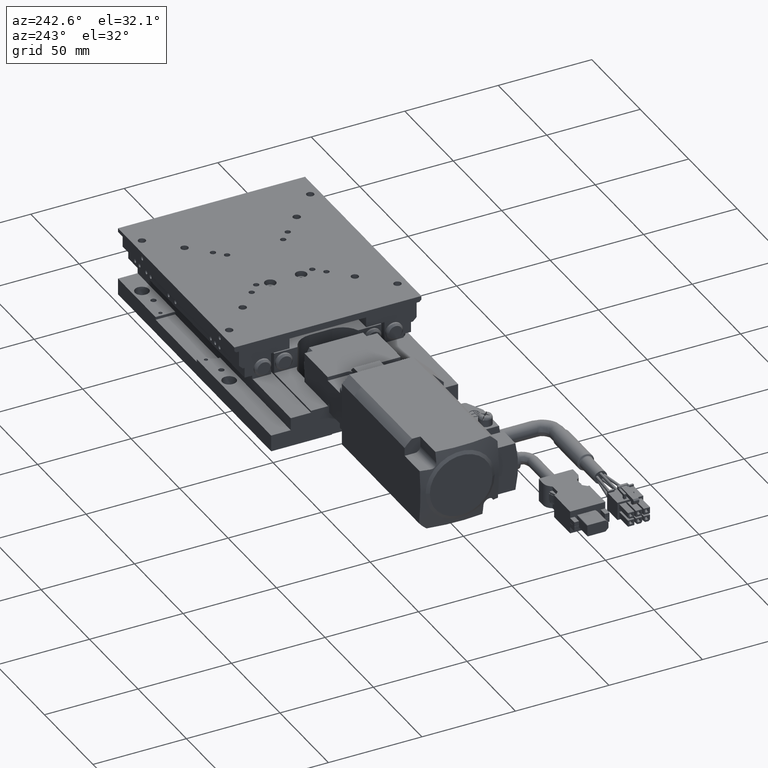
[diagram: clean part render]
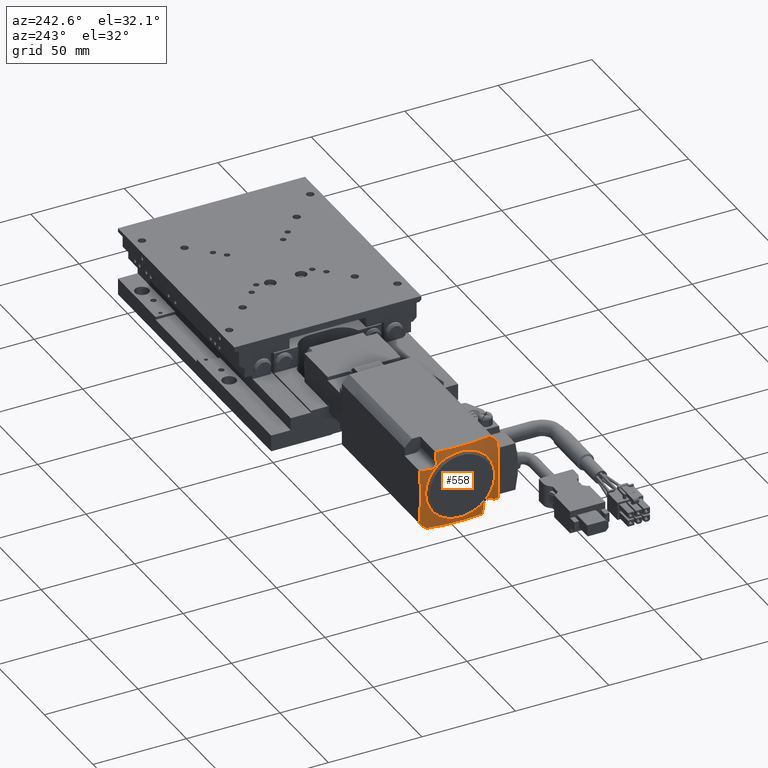
[diagram: same view with one face highlighted and labeled with its STEP entity id]
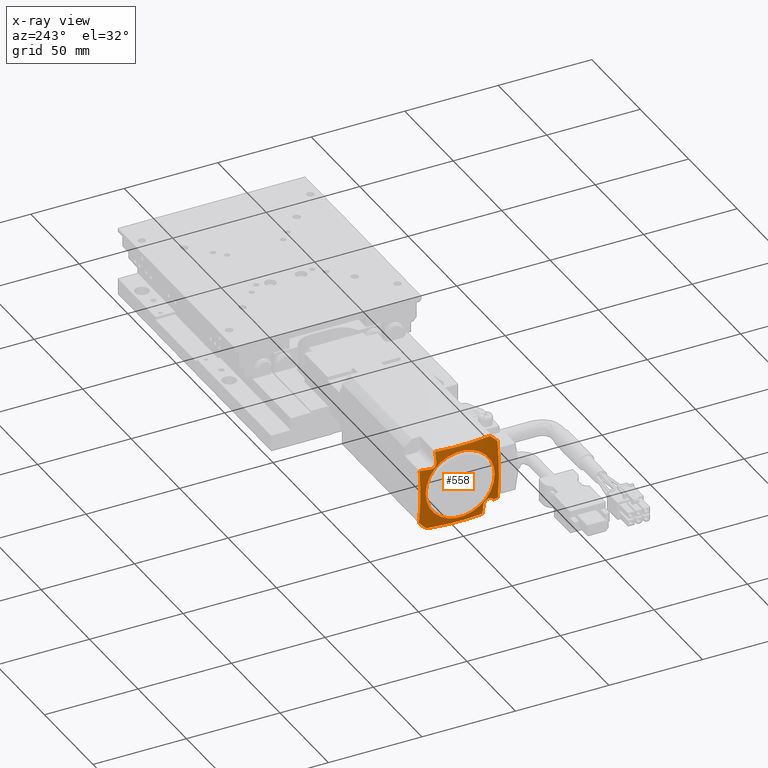
[diagram: x-ray of the same camera — body ghosted, the highlighted face saturated]
A machine part, auxiliary view. The second image highlights one B-rep face of the part: STEP entity #558.
The next image is the same camera in x-ray: the body ghosted, the highlighted face saturated — about 0% of this face is hidden behind the body in this view.
In plain terms, the highlighted spherical surface has radius 100 mm.
Its self-contained STEP definition (entity closure, byte-faithful):
#558=ADVANCED_FACE('',(#5958,#5959),#5957,.T.);
#5957=SPHERICAL_SURFACE('',#17284,1.00000000000E+02);
#5958=FACE_OUTER_BOUND('',#17285,.T.);
#5959=FACE_BOUND('',#17286,.T.);
#17281=CARTESIAN_POINT('',(-9.82227595021E+01,-4.16541888482E-06,2.19999916422E+01));
#17282=DIRECTION('',(2.85476031338E-07,-5.03729027921E-27,1.00000000000E+00));
#17283=DIRECTION('',(-9.77032311715E-01,2.13091205507E-01,2.78919306838E-07));
#17284=AXIS2_PLACEMENT_3D('',#17281,#17282,#17283);
#17285=EDGE_LOOP('',(#24464,#24465,#24466,#24467,#24468,#24469,#24470,#24471,#24472,#24473,#24474,#24475));
#17286=EDGE_LOOP('',(#24476,#24477));
#24464=ORIENTED_EDGE('',*,*,#29405,.T.);
#24465=ORIENTED_EDGE('',*,*,#29449,.F.);
#24466=ORIENTED_EDGE('',*,*,#29464,.T.);
#24467=ORIENTED_EDGE('',*,*,#29700,.T.);
#24468=ORIENTED_EDGE('',*,*,#29698,.F.);
#24469=ORIENTED_EDGE('',*,*,#29701,.T.);
#24470=ORIENTED_EDGE('',*,*,#29473,.T.);
#24471=ORIENTED_EDGE('',*,*,#29447,.F.);
#24472=ORIENTED_EDGE('',*,*,#29471,.F.);
#24473=ORIENTED_EDGE('',*,*,#29702,.F.);
#24474=ORIENTED_EDGE('',*,*,#29703,.F.);
#24475=ORIENTED_EDGE('',*,*,#29704,.F.);
#24476=ORIENTED_EDGE('',*,*,#29705,.T.);
#24477=ORIENTED_EDGE('',*,*,#29706,.T.);
#29405=EDGE_CURVE('',#38400,#38393,#38401,.T.);
#29447=EDGE_CURVE('',#38681,#38653,#38688,.T.);
#29449=EDGE_CURVE('',#38695,#38393,#38702,.T.);
#29464=EDGE_CURVE('',#38695,#38796,#38803,.T.);
#29471=EDGE_CURVE('',#38843,#38681,#38850,.T.);
#29473=EDGE_CURVE('',#38862,#38653,#38863,.T.);
#29698=EDGE_CURVE('',#40381,#40388,#40389,.T.);
#29700=EDGE_CURVE('',#38796,#40388,#40401,.T.);
#29701=EDGE_CURVE('',#40381,#38862,#40407,.T.);
#29702=EDGE_CURVE('',#40413,#38843,#40414,.T.);
#29703=EDGE_CURVE('',#40420,#40413,#40421,.T.);
#29704=EDGE_CURVE('',#38400,#40420,#40427,.T.);
#29705=EDGE_CURVE('',#40433,#40434,#40435,.T.);
#29706=EDGE_CURVE('',#40434,#40433,#40441,.T.);
#38393=VERTEX_POINT('',#55995);
#38400=VERTEX_POINT('',#55999);
#38401=CIRCLE('',#56003,9.77701385905E+01);
#38653=VERTEX_POINT('',#56230);
#38681=VERTEX_POINT('',#56249);
#38688=CIRCLE('',#56256,2.70000000000E+01);
#38695=VERTEX_POINT('',#56258);
#38702=CIRCLE('',#56265,2.70000000000E+01);
#38796=VERTEX_POINT('',#56321);
#38803=CIRCLE('',#56328,9.77701385905E+01);
#38843=VERTEX_POINT('',#56348);
#38850=CIRCLE('',#56355,9.77701385905E+01);
#38862=VERTEX_POINT('',#56359);
#38863=CIRCLE('',#56363,9.77701385905E+01);
#40381=VERTEX_POINT('',#57331);
#40388=VERTEX_POINT('',#57335);
#40389=(BOUNDED_CURVE() B_SPLINE_CURVE(3,(#57336,#57337,#57338,#57339,#57340,#57341,#57342,#57343,#57344,#57345,#57346,#57347,#57348,#57349,#57350,#57351,#57352,#57353,#57354,#57355,#57356,#57357),.UNSPECIFIED.,.F.,.F.) B_SPLINE_CURVE_WITH_KNOTS((4,2,2,2,2,2,2,2,2,2,4),(-3.59138880946E-03,-2.57355304704E-03,-1.55571728462E-03,-5.37881522191E-04,4.79954240232E-04,1.49779000266E-03,2.51562576508E-03,3.02454364629E-03,3.53346152750E-03,4.04237940872E-03,4.55129728993E-03),.UNSPECIFIED.) CURVE() GEOMETRIC_REPRESENTATION_ITEM() RATIONAL_B_SPLINE_CURVE((1.00000000000E+00,1.00000000000E+00,1.00000000000E+00,1.00000000000E+00,1.00000000000E+00,1.00000000000E+00,1.00000000000E+00,1.00000000000E+00,1.00000000000E+00,1.00000000000E+00,1.00000000000E+00,1.00000000000E+00,1.00000000000E+00,1.00000000000E+00,1.00000000000E+00,1.00000000000E+00,1.00000000000E+00,1.00000000000E+00,1.00000000000E+00,1.00000000000E+00,1.00000000000E+00,1.00000000000E+00)) REPRESENTATION_ITEM('') );
#40401=CIRCLE('',#57364,9.92030241475E+01);
#40407=CIRCLE('',#57368,9.89431655042E+01);
#40413=VERTEX_POINT('',#57369);
#40414=CIRCLE('',#57373,9.92030241475E+01);
#40420=VERTEX_POINT('',#57374);
#40421=(BOUNDED_CURVE() B_SPLINE_CURVE(3,(#57375,#57376,#57377,#57378,#57379,#57380,#57381,#57382,#57383,#57384,#57385,#57386,#57387,#57388,#57389,#57390,#57391,#57392),.UNSPECIFIED.,.F.,.F.) B_SPLINE_CURVE_WITH_KNOTS((4,2,2,2,2,2,2,2,4),(9.64138021613E-17,5.68912161241E-04,1.13782432248E-03,1.70673648372E-03,2.27564864496E-03,2.84456080620E-03,3.41347296744E-03,3.98238512868E-03,4.55129728992E-03),.UNSPECIFIED.) CURVE() GEOMETRIC_REPRESENTATION_ITEM() RATIONAL_B_SPLINE_CURVE((1.00000000000E+00,1.00000000000E+00,1.00000000000E+00,1.00000000000E+00,1.00000000000E+00,1.00000000000E+00,1.00000000000E+00,1.00000000000E+00,1.00000000000E+00,1.00000000000E+00,1.00000000000E+00,1.00000000000E+00,1.00000000000E+00,1.00000000000E+00,1.00000000000E+00,1.00000000000E+00,1.00000000000E+00,1.00000000000E+00)) REPRESENTATION_ITEM('') );
#40427=CIRCLE('',#57396,9.92030241475E+01);
#40433=VERTEX_POINT('',#57397);
#40434=VERTEX_POINT('',#57398);
#40435=CIRCLE('',#57402,1.84820508076E+01);
#40441=CIRCLE('',#57406,1.84820508076E+01);
#55995=CARTESIAN_POINT('',(-1.94508790568E+02,2.10000233210E+01,5.02945638108E+00));
#55999=CARTESIAN_POINT('',(-1.95177584756E+02,2.10000235118E+01,3.46000193205E+01));
#56000=CARTESIAN_POINT('',(-9.82227535073E+01,2.09999958346E+01,2.19999916422E+01));
#56001=DIRECTION('',(-2.85465838083E-07,-1.00000000000E+00,8.14923575637E-14));
#56002=DIRECTION('',(9.91660977950E-01,-2.83085342667E-07,-1.28873988111E-01));
#56003=AXIS2_PLACEMENT_3D('',#56000,#56001,#56002);
#56230=CARTESIAN_POINT('',(-1.94508792869E+02,-2.09999766790E+01,3.89705818780E+01));
#56249=CARTESIAN_POINT('',(-1.94508790568E+02,-1.69705394275E+01,4.30000191296E+01));
#56253=CARTESIAN_POINT('',(-1.94508791719E+02,2.33209539180E-05,2.20000191296E+01));
#56254=DIRECTION('',(1.00000000000E+00,-2.85465837313E-07,-2.85476031338E-07));
#56255=DIRECTION('',(-4.26103982751E-08,6.28539361055E-01,-7.77777777778E-01));
#56256=AXIS2_PLACEMENT_3D('',#56253,#56254,#56255);
#56258=CARTESIAN_POINT('',(-1.94508792869E+02,1.69705860694E+01,1.00001912955E+00));
#56262=CARTESIAN_POINT('',(-1.94508791719E+02,2.33209539180E-05,2.20000191296E+01));
#56263=DIRECTION('',(1.00000000000E+00,-2.85465837313E-07,-2.85476031338E-07));
#56264=DIRECTION('',(4.26103982751E-08,-6.28539361055E-01,7.77777777778E-01));
#56265=AXIS2_PLACEMENT_3D('',#56262,#56263,#56264);
#56321=CARTESIAN_POINT('',(-1.95177603940E+02,-1.25999764881E+01,1.00001932048E+00));
#56325=CARTESIAN_POINT('',(-9.82227654971E+01,-4.16541888482E-06,9.99991642201E-01));
#56326=DIRECTION('',(2.85476031338E-07,0.00000000000E+00,1.00000000000E+00));
#56327=DIRECTION('',(9.84820403859E-01,-1.73576415862E-01,-2.81142620474E-07));
#56328=AXIS2_PLACEMENT_3D('',#56325,#56326,#56327);
#56348=CARTESIAN_POINT('',(-1.95177584756E+02,1.26000235119E+01,4.30000193205E+01));
#56352=CARTESIAN_POINT('',(-9.82227535071E+01,-4.16541888482E-06,4.29999916422E+01));
#56353=DIRECTION('',(2.85476031338E-07,0.00000000000E+00,1.00000000000E+00));
#56354=DIRECTION('',(9.91660977951E-01,-1.28873988100E-01,-2.83095440418E-07));
#56355=AXIS2_PLACEMENT_3D('',#56352,#56353,#56354);
#56359=CARTESIAN_POINT('',(-1.94911703853E+02,-2.09999765640E+01,7.50001924458E+00));
#56360=CARTESIAN_POINT('',(-9.82227654969E+01,-2.10000041654E+01,2.19999916422E+01));
#56361=DIRECTION('',(2.85465836550E-07,1.00000000000E+00,-8.14936541010E-14));
#56362=DIRECTION('',(1.00000000000E+00,-2.85465836550E-07,-2.85476031364E-07));
#56363=AXIS2_PLACEMENT_3D('',#56360,#56361,#56362);
#57331=CARTESIAN_POINT('',(-1.95473495951E+02,-1.82221079214E+01,7.50001940495E+00));
#57335=CARTESIAN_POINT('',(-1.96207409177E+02,-1.25999761941E+01,6.50001961447E+00));
#57336=CARTESIAN_POINT('',(-1.95473495951E+02,-1.82221079214E+01,7.50001940495E+00));
#57337=CARTESIAN_POINT('',(-1.95542442568E+02,-1.81058872828E+01,7.81638723447E+00));
#57338=CARTESIAN_POINT('',(-1.95614537849E+02,-1.79398032108E+01,8.10310650799E+00));
#57339=CARTESIAN_POINT('',(-1.95764905340E+02,-1.75091555854E+01,8.61800009645E+00));
#57340=CARTESIAN_POINT('',(-1.95839006843E+02,-1.72565143371E+01,8.83187122873E+00));
#57341=CARTESIAN_POINT('',(-1.95984952867E+02,-1.66766219988E+01,9.17180979707E+00));
#57342=CARTESIAN_POINT('',(-1.96052750508E+02,-1.63654465325E+01,9.28844512448E+00));
#57343=CARTESIAN_POINT('',(-1.96177698351E+02,-1.57006397592E+01,9.41276573951E+00));
#57344=CARTESIAN_POINT('',(-1.96232590453E+02,-1.53567683352E+01,9.41595645230E+00));
#57345=CARTESIAN_POINT('',(-1.96320095390E+02,-1.46929675574E+01,9.30571620922E+00));
#57346=CARTESIAN_POINT('',(-1.96353614980E+02,-1.43651964403E+01,9.19017115642E+00));
#57347=CARTESIAN_POINT('',(-1.96393952434E+02,-1.37759956241E+01,8.85640063582E+00));
#57348=CARTESIAN_POINT('',(-1.96401282910E+02,-1.35070435914E+01,8.63389077822E+00));
#57349=CARTESIAN_POINT('',(-1.96391931283E+02,-1.31779009134E+01,8.24551763233E+00));
#57350=CARTESIAN_POINT('',(-1.96385410036E+02,-1.30783654972E+01,8.10467846758E+00));
#57351=CARTESIAN_POINT('',(-1.96365888478E+02,-1.29068609350E+01,7.80955449341E+00));
#57352=CARTESIAN_POINT('',(-1.96353016411E+02,-1.28350645768E+01,7.65625469700E+00));
#57353=CARTESIAN_POINT('',(-1.96321200360E+02,-1.27186757191E+01,7.33847121081E+00));
#57354=CARTESIAN_POINT('',(-1.96302049001E+02,-1.26739345329E+01,7.17252692452E+00));
#57355=CARTESIAN_POINT('',(-1.96258587781E+02,-1.26147989971E+01,6.83844242687E+00));
#57356=CARTESIAN_POINT('',(-1.96234291091E+02,-1.25999761865E+01,6.66995635577E+00));
#57357=CARTESIAN_POINT('',(-1.96207409177E+02,-1.25999761941E+01,6.50001961447E+00));
#57361=CARTESIAN_POINT('',(-9.82227630989E+01,-1.26000041654E+01,2.19999916422E+01));
#57362=DIRECTION('',(2.85465837311E-07,1.00000000000E+00,1.68306052387E-13));
#57363=DIRECTION('',(9.77337552702E-01,-2.78996518446E-07,2.11686816024E-01));
#57364=AXIS2_PLACEMENT_3D('',#57361,#57362,#57363);
#57365=CARTESIAN_POINT('',(-9.82227636415E+01,-4.16541640763E-06,7.49999164220E+00));
#57366=DIRECTION('',(2.85476031342E-07,-1.71106721517E-13,1.00000000000E+00));
#57367=DIRECTION('',(9.82894895405E-01,1.84167381983E-01,-2.80592902455E-07));
#57368=AXIS2_PLACEMENT_3D('',#57365,#57366,#57367);
#57369=CARTESIAN_POINT('',(-1.96207393134E+02,1.26000238058E+01,3.75000196145E+01));
#57370=CARTESIAN_POINT('',(-9.82227559052E+01,1.25999958346E+01,2.19999916422E+01));
#57371=DIRECTION('',(2.85465837316E-07,1.00000000000E+00,-7.26811180815E-13));
#57372=DIRECTION('',(9.87718248217E-01,-2.81959930320E-07,-1.56245518778E-01));
#57373=AXIS2_PLACEMENT_3D('',#57370,#57371,#57372);
#57374=CARTESIAN_POINT('',(-1.96207393134E+02,1.55000238058E+01,3.46000196145E+01));
#57375=CARTESIAN_POINT('',(-1.96207393134E+02,1.55000238058E+01,3.46000196145E+01));
#57376=CARTESIAN_POINT('',(-1.96237441642E+02,1.53100698190E+01,3.46000196230E+01));
#57377=CARTESIAN_POINT('',(-1.96264131064E+02,1.51227796736E+01,3.46185043681E+01));
#57378=CARTESIAN_POINT('',(-1.96310984635E+02,1.47533880885E+01,3.46914651372E+01));
#57379=CARTESIAN_POINT('',(-1.96331316918E+02,1.45692991676E+01,3.47468635895E+01));
#57380=CARTESIAN_POINT('',(-1.96363909233E+02,1.42179601203E+01,3.48918729412E+01));
#57381=CARTESIAN_POINT('',(-1.96376232651E+02,1.40509911805E+01,3.49808027777E+01));
#57382=CARTESIAN_POINT('',(-1.96392932175E+02,1.37344785964E+01,3.51915571208E+01));
#57383=CARTESIAN_POINT('',(-1.96397211035E+02,1.35845414306E+01,3.53143910828E+01));
#57384=CARTESIAN_POINT('',(-1.96397245132E+02,1.33159367176E+01,3.55827798279E+01));
#57385=CARTESIAN_POINT('',(-1.96393140096E+02,1.31953545079E+01,3.57293643251E+01));
#57386=CARTESIAN_POINT('',(-1.96376449664E+02,1.29824058802E+01,3.60480138444E+01));
#57387=CARTESIAN_POINT('',(-1.96364008517E+02,1.28926325813E+01,3.62165717150E+01));
#57388=CARTESIAN_POINT('',(-1.96331661960E+02,1.27480935015E+01,3.65658851515E+01));
#57389=CARTESIAN_POINT('',(-1.96311489009E+02,1.26924718099E+01,3.67491898731E+01));
#57390=CARTESIAN_POINT('',(-1.96264270698E+02,1.26185118721E+01,3.71218892249E+01));
#57391=CARTESIAN_POINT('',(-1.96237444156E+02,1.26000238144E+01,3.73100497321E+01));
#57392=CARTESIAN_POINT('',(-1.96207393134E+02,1.26000238058E+01,3.75000196145E+01));
#57393=CARTESIAN_POINT('',(-9.82227559051E+01,-4.16541980769E-06,3.45999916422E+01));
#57394=DIRECTION('',(2.85476031337E-07,-7.31735748784E-14,1.00000000000E+00));
#57395=DIRECTION('',(9.77337431841E-01,-2.11687374026E-01,-2.79006426809E-07));
#57396=AXIS2_PLACEMENT_3D('',#57393,#57394,#57395);
#57397=CARTESIAN_POINT('',(-1.96499983521E+02,1.84820746969E+01,2.20000196980E+01));
#57398=CARTESIAN_POINT('',(-1.96499994073E+02,-1.84820269182E+01,2.20000196980E+01));
#57399=CARTESIAN_POINT('',(-1.96499988797E+02,2.38893726676E-05,2.20000196980E+01));
#57400=DIRECTION('',(1.00000000000E+00,-2.85465837313E-07,-2.85476031338E-07));
#57401=DIRECTION('',(2.85465837313E-07,1.00000000000E+00,-8.16161189988E-14));
#57402=AXIS2_PLACEMENT_3D('',#57399,#57400,#57401);
#57403=CARTESIAN_POINT('',(-1.96499988797E+02,2.38893726676E-05,2.20000196980E+01));
#57404=DIRECTION('',(1.00000000000E+00,-2.85465837313E-07,-2.85476031338E-07));
#57405=DIRECTION('',(2.85465837313E-07,1.00000000000E+00,-8.16161189988E-14));
#57406=AXIS2_PLACEMENT_3D('',#57403,#57404,#57405);